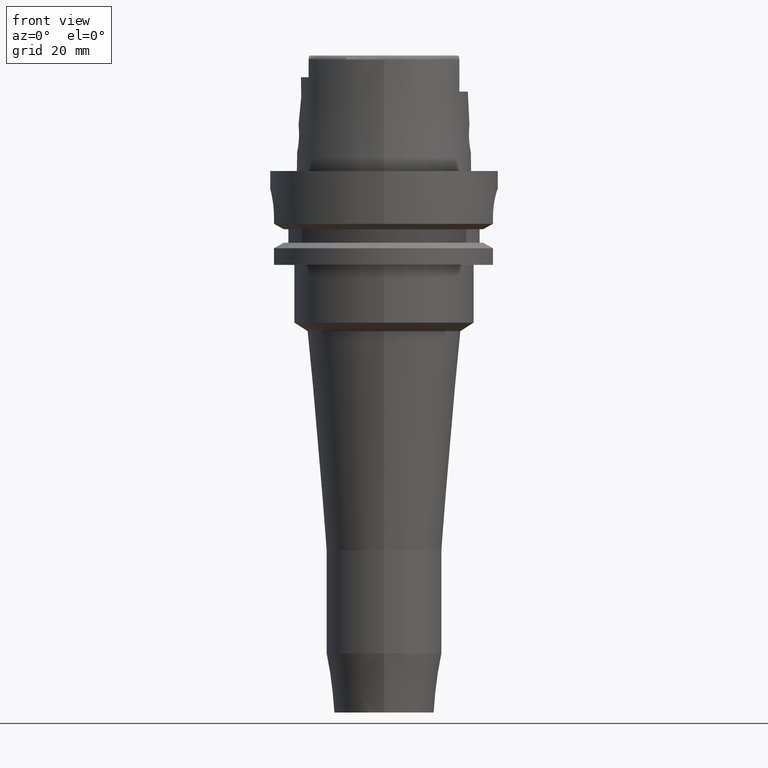
[diagram: clean part render]
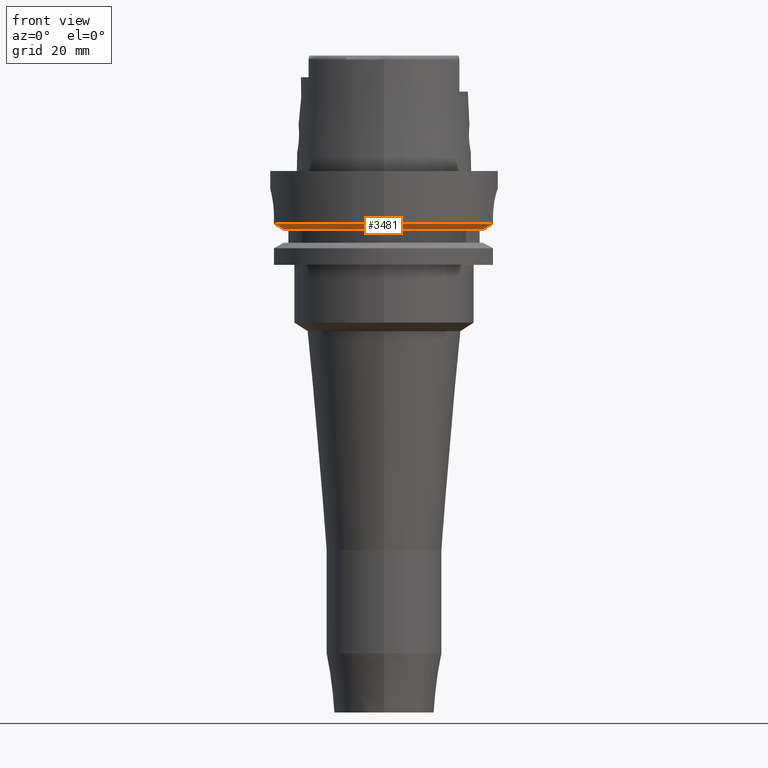
[diagram: same view with one face highlighted and labeled with its STEP entity id]
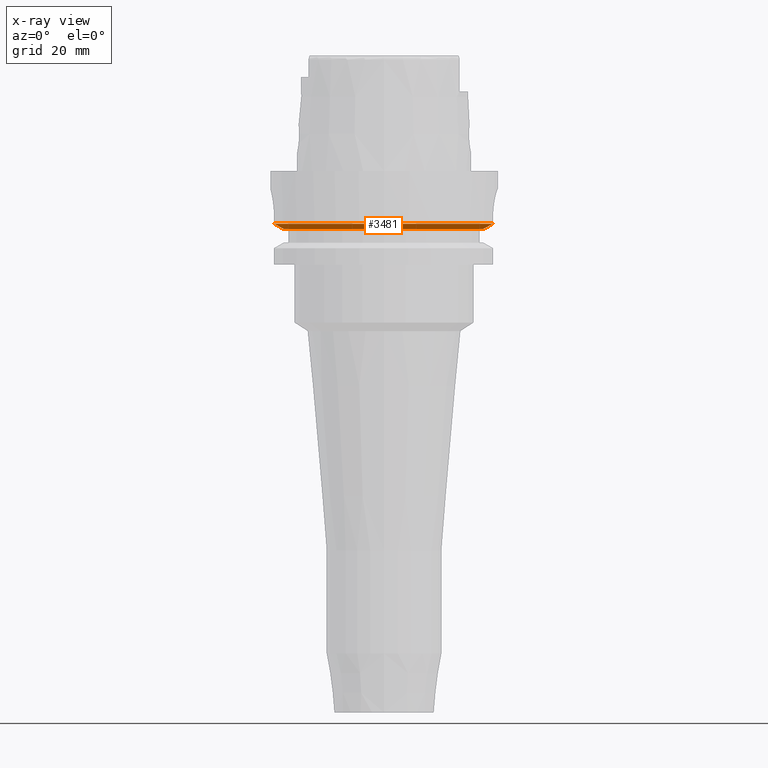
[diagram: x-ray of the same camera — body ghosted, the highlighted face saturated]
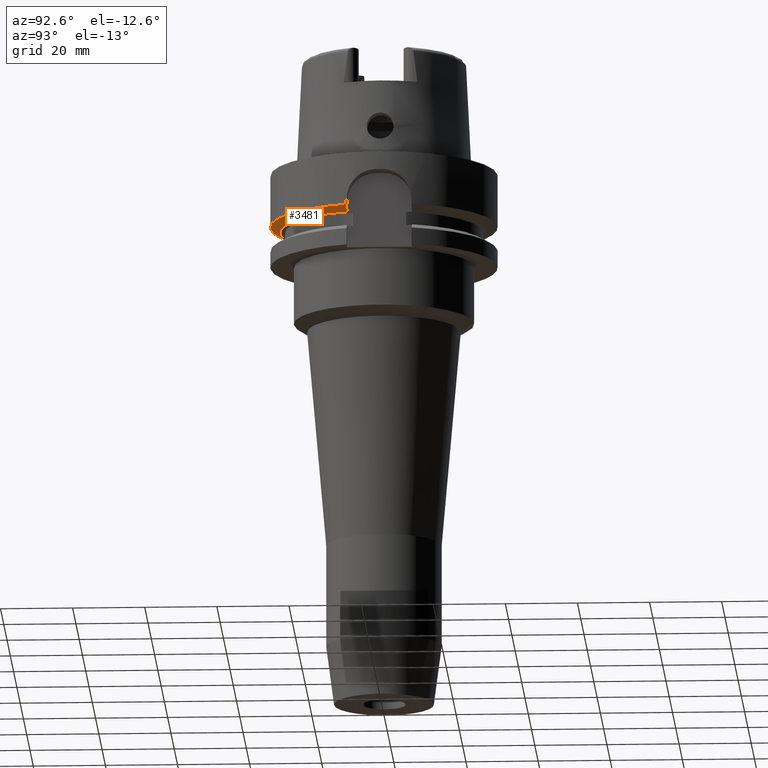
[diagram: same view with one face highlighted and labeled with its STEP entity id]
A machine part, front view. The second image highlights one B-rep face of the part: STEP entity #3481.
The next image is the same camera in x-ray: the body ghosted, the highlighted face saturated — about 0% of this face is hidden behind the body in this view.
A second angle (auxiliary view) of the same face is appended — the face is thin or edge-on in the first view.
In plain terms, the highlighted conical surface has half-angle 60 deg.
Its self-contained STEP definition (entity closure, byte-faithful):
#890=CARTESIAN_POINT('',(0.E0,0.E0,-1.6125E1));
#891=DIRECTION('',(0.E0,0.E0,1.E0));
#892=DIRECTION('',(-9.609161312155E-1,-2.768396445054E-1,0.E0));
#893=AXIS2_PLACEMENT_3D('',#890,#891,#892);
#898=CARTESIAN_POINT('',(0.E0,0.E0,-1.6125E1));
#899=DIRECTION('',(0.E0,0.E0,1.E0));
#900=DIRECTION('',(0.E0,-1.E0,0.E0));
#901=AXIS2_PLACEMENT_3D('',#898,#899,#900);
#1291=CARTESIAN_POINT('',(-2.776816318330E1,-8.000000147314E0,-1.6125E1));
#1292=CARTESIAN_POINT('',(-2.806165786460E1,-8.000000147314E0,
-1.596217349909E1));
#1293=CARTESIAN_POINT('',(-2.865290108849E1,-7.999999994462E0,
-1.563376627371E1));
#1294=CARTESIAN_POINT('',(-2.955256981807E1,-7.999999798413E0,
-1.513291625261E1));
#1295=CARTESIAN_POINT('',(-3.016089024484E1,-8.000000474061E0,
-1.479354364710E1));
#1296=CARTESIAN_POINT('',(-3.046719534869E1,-8.000000474061E0,
-1.462249662176E1));
#1301=CARTESIAN_POINT('',(0.E0,0.E0,-1.462250092524E1));
#1302=DIRECTION('',(0.E0,0.E0,1.E0));
#1303=DIRECTION('',(-9.672125547036E-1,-2.539682539683E-1,0.E0));
#1304=AXIS2_PLACEMENT_3D('',#1301,#1302,#1303);
#1309=CARTESIAN_POINT('',(0.E0,0.E0,-1.462250092524E1));
#1310=DIRECTION('',(0.E0,0.E0,1.E0));
#1311=DIRECTION('',(0.E0,-1.E0,0.E0));
#1312=AXIS2_PLACEMENT_3D('',#1309,#1310,#1311);
#1317=CARTESIAN_POINT('',(3.018691773962E1,-8.999999854527E0,
-1.462250209851E1));
#1318=CARTESIAN_POINT('',(2.987690598458E1,-8.999999854527E0,
-1.479402643702E1));
#1319=CARTESIAN_POINT('',(2.926159460857E1,-8.999999970876E0,
-1.513403592836E1));
#1320=CARTESIAN_POINT('',(2.835275218876E1,-9.000000320144E0,
-1.563488648290E1));
#1321=CARTESIAN_POINT('',(2.775625451007E1,-8.999999272413E0,
-1.596266374850E1));
#1322=CARTESIAN_POINT('',(2.746036354070E1,-8.999999272413E0,-1.6125E1));
#2543=CARTESIAN_POINT('',(-2.776816318330E1,-8.000000147314E0,-1.6125E1));
#2545=VERTEX_POINT('',#2543);
#2550=CARTESIAN_POINT('',(-3.046719534869E1,-8.000000474061E0,
-1.462249662176E1));
#2551=VERTEX_POINT('',#2550);
#2614=CARTESIAN_POINT('',(2.746036354070E1,-8.999999272413E0,-1.6125E1));
#2615=VERTEX_POINT('',#2614);
#2616=VERTEX_POINT('',#1317);
#2619=CARTESIAN_POINT('',(2.048894728283E-14,-2.889759526419E1,-1.6125E1));
#2620=VERTEX_POINT('',#2619);
#2627=CARTESIAN_POINT('',(0.E0,-3.15E1,-1.462250092524E1));
#2628=VERTEX_POINT('',#2627);
#3467=CARTESIAN_POINT('',(0.E0,0.E0,-1.537375046262E1));
#3468=DIRECTION('',(0.E0,0.E0,1.E0));
#3469=DIRECTION('',(0.E0,1.E0,0.E0));
#3470=AXIS2_PLACEMENT_3D('',#3467,#3468,#3469);
#3471=CONICAL_SURFACE('',#3470,3.019879763210E1,6.E1);
#3472=ORIENTED_EDGE('',*,*,#3178,.T.);
#3473=ORIENTED_EDGE('',*,*,#3034,.T.);
#3475=ORIENTED_EDGE('',*,*,#3474,.T.);
#3476=ORIENTED_EDGE('',*,*,#3457,.T.);
#3477=ORIENTED_EDGE('',*,*,#3193,.F.);
#3478=ORIENTED_EDGE('',*,*,#3191,.F.);
#3479=EDGE_LOOP('',(#3472,#3473,#3475,#3476,#3477,#3478));
#3480=FACE_OUTER_BOUND('',#3479,.F.);
#894=CIRCLE('',#893,2.889759526419E1);
#902=CIRCLE('',#901,2.889759526419E1);
#1297=B_SPLINE_CURVE_WITH_KNOTS('',3,(#1291,#1292,#1293,#1294,#1295,#1296),
.UNSPECIFIED.,.F.,.F.,(4,1,1,4),(0.E0,3.333333333333E-1,6.666666666667E-1,1.E0),
.UNSPECIFIED.);
#1305=CIRCLE('',#1304,3.15E1);
#1313=CIRCLE('',#1312,3.15E1);
#1323=B_SPLINE_CURVE_WITH_KNOTS('',3,(#1317,#1318,#1319,#1320,#1321,#1322),
.UNSPECIFIED.,.F.,.F.,(4,1,1,4),(0.E0,3.333333333333E-1,6.666666666667E-1,1.E0),
.UNSPECIFIED.);
#3034=EDGE_CURVE('',#2551,#2628,#1305,.T.);
#3178=EDGE_CURVE('',#2545,#2551,#1297,.T.);
#3191=EDGE_CURVE('',#2545,#2620,#894,.T.);
#3193=EDGE_CURVE('',#2620,#2615,#902,.T.);
#3457=EDGE_CURVE('',#2616,#2615,#1323,.T.);
#3474=EDGE_CURVE('',#2628,#2616,#1313,.T.);
#3481=ADVANCED_FACE('',(#3480),#3471,.T.);